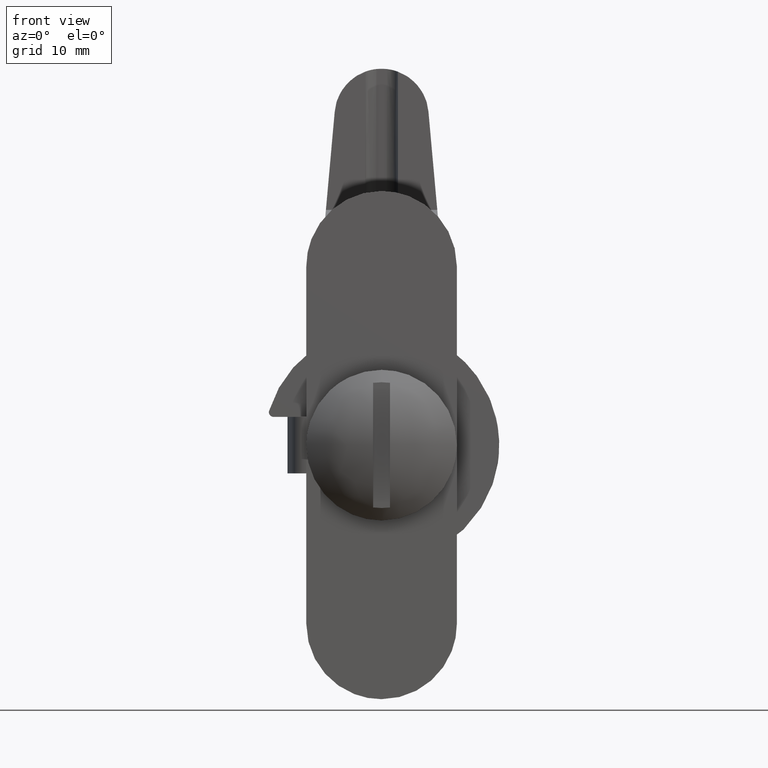
[diagram: clean part render]
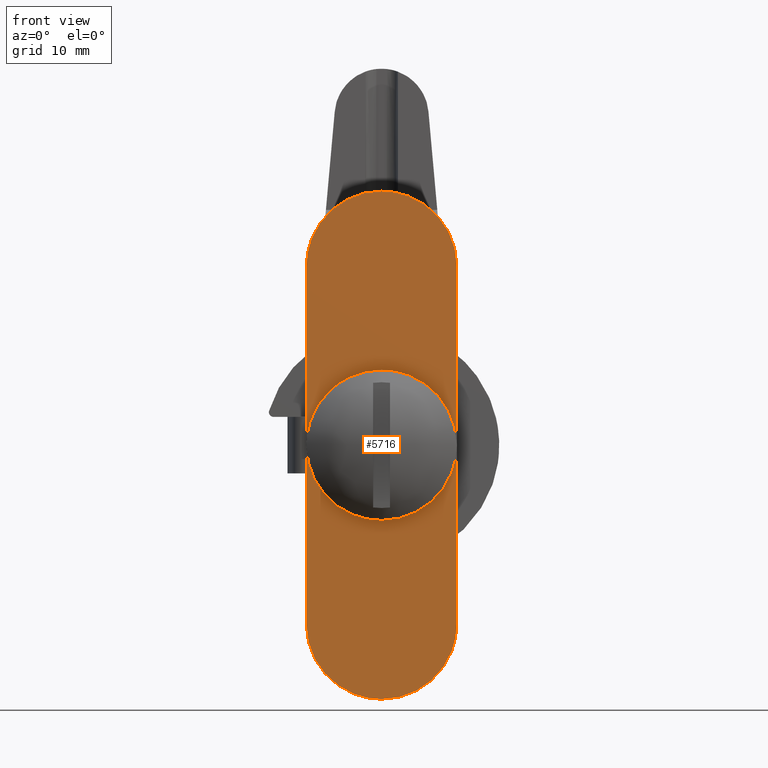
[diagram: same view with one face highlighted and labeled with its STEP entity id]
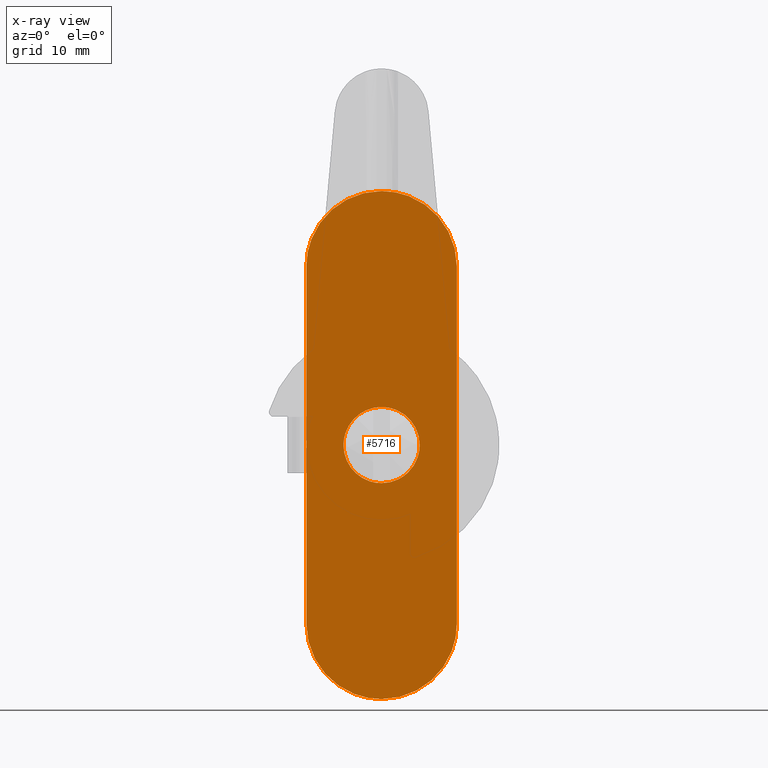
[diagram: x-ray of the same camera — body ghosted, the highlighted face saturated]
A machine part, front view. The second image highlights one B-rep face of the part: STEP entity #5716.
The next image is the same camera in x-ray: the body ghosted, the highlighted face saturated — about 0% of this face is hidden behind the body in this view.
In plain terms, the highlighted face is a freeform B-spline surface patch.
Its self-contained STEP definition (entity closure, byte-faithful):
#5248=CARTESIAN_POINT('',(3.092400484543958,-1.599991000000631,2.615255344986193));
#5249=VERTEX_POINT('',#5248);
#5250=CARTESIAN_POINT('',(0.0,-1.599990999999965,4.050000000000000));
#5251=VERTEX_POINT('',#5250);
#5252=CARTESIAN_POINT('',(3.092400484543958,-1.599991000000631,2.615255344986193));
#5253=CARTESIAN_POINT('',(2.879450463511448,-1.599991000000588,2.867201637805676));
#5254=CARTESIAN_POINT('',(2.513455534628931,-1.599991000000501,3.205643752623646));
#5255=CARTESIAN_POINT('',(1.877003888556455,-1.599991000000373,3.607656000382701));
#5256=CARTESIAN_POINT('',(1.099462235144810,-1.599991000000200,3.943158492366766));
#5257=CARTESIAN_POINT('',(0.421533467174322,-1.599991000000055,4.050213329466186));
#5258=CARTESIAN_POINT('',(0.0,-1.599990999999965,4.050000000000000));
#5259=B_SPLINE_CURVE_WITH_KNOTS('',3,(#5252,#5253,#5254,#5255,#5256,#5257,#5258),.UNSPECIFIED.,.F.,.U.,(4,1,1,1,4),(0.000000023080737,0.989627527674797,1.484443801501332,2.254149022901001,3.518673672374912),.UNSPECIFIED.);
#5260=EDGE_CURVE('',#5249,#5251,#5259,.T.);
#5262=CARTESIAN_POINT('',(-4.049999999999949,-1.599990999999965,-0.000000639136269));
#5263=VERTEX_POINT('',#5262);
#5264=CARTESIAN_POINT('',(0.0,-1.599990999999965,4.050000000000000));
#5265=CARTESIAN_POINT('',(-0.314774181988511,-1.599990999999964,4.050062645675340));
#5266=CARTESIAN_POINT('',(-0.861454541847088,-1.599990999999967,3.985933744480716));
#5267=CARTESIAN_POINT('',(-1.603535380286522,-1.599990999999964,3.740766554754877));
#5268=CARTESIAN_POINT('',(-2.278139149217246,-1.599990999999965,3.380227175433728));
#5269=CARTESIAN_POINT('',(-2.870828241984392,-1.599990999999975,2.893817393189305));
#5270=CARTESIAN_POINT('',(-3.345502506040711,-1.599990999999957,2.315373141670689));
#5271=CARTESIAN_POINT('',(-3.660138199431569,-1.599990999999972,1.767776444814357));
#5272=CARTESIAN_POINT('',(-3.957708864991862,-1.599990999999964,1.010485527771871));
#5273=CARTESIAN_POINT('',(-4.050196407394374,-1.599990999999965,0.414203455855034));
#5274=CARTESIAN_POINT('',(-4.049999999999949,-1.599990999999965,-0.000000639136269));
#5275=B_SPLINE_CURVE_WITH_KNOTS('',3,(#5264,#5265,#5266,#5267,#5268,#5269,#5270,#5271,#5272,#5273,#5274),.UNSPECIFIED.,.F.,.U.,(4,1,1,1,1,1,1,1,4),(0.000000070980157,0.944313055946179,1.640143833672003,2.335974185389155,3.230562816715836,3.926395951291294,4.572516989498781,5.119233933469779,6.361765400877429),.UNSPECIFIED.);
#5276=EDGE_CURVE('',#5251,#5263,#5275,.T.);
#5278=CARTESIAN_POINT('',(0.0,-1.599990999999965,-4.050000000000000));
#5279=VERTEX_POINT('',#5278);
#5280=CARTESIAN_POINT('',(-4.049999999999949,-1.599990999999965,-0.000000639136269));
#5281=CARTESIAN_POINT('',(-4.050021377162549,-1.599990999999965,-0.265066795188676));
#5282=CARTESIAN_POINT('',(-3.989669675933455,-1.599990999999967,-0.878058234504779));
#5283=CARTESIAN_POINT('',(-3.706834513284169,-1.599990999999963,-1.717005494734092));
#5284=CARTESIAN_POINT('',(-3.191544699875011,-1.599990999999965,-2.553211640489213));
#5285=CARTESIAN_POINT('',(-2.588707740704343,-1.599990999999979,-3.156125099174831));
#5286=CARTESIAN_POINT('',(-1.889291668312245,-1.599990999999938,-3.604906772169243));
#5287=CARTESIAN_POINT('',(-1.076747036564646,-1.599990999999990,-3.947423221746329));
#5288=CARTESIAN_POINT('',(-0.414202610406967,-1.599990999999956,-4.050203531190827));
#5289=CARTESIAN_POINT('',(0.0,-1.599990999999965,-4.050000000000000));
#5290=B_SPLINE_CURVE_WITH_KNOTS('',3,(#5280,#5281,#5282,#5283,#5284,#5285,#5286,#5287,#5288,#5289),.UNSPECIFIED.,.F.,.U.,(4,1,1,1,1,1,1,4),(0.000000071200660,0.795207521116857,1.838952461712017,2.634173546756636,3.727595044182834,4.373706819607634,5.119233353555915,6.361764680417384),.UNSPECIFIED.);
#5291=EDGE_CURVE('',#5263,#5279,#5290,.T.);
#5293=CARTESIAN_POINT('',(2.787835964500129,-1.599990999996057,-2.937766046260736));
#5294=VERTEX_POINT('',#5293);
#5295=CARTESIAN_POINT('',(0.0,-1.599990999999965,-4.050000000000000));
#5296=CARTESIAN_POINT('',(0.272248477397850,-1.599990999999583,-4.050019538906583));
#5297=CARTESIAN_POINT('',(0.880813398071738,-1.599990999998729,-3.988456380367733));
#5298=CARTESIAN_POINT('',(1.859280489832357,-1.599990999997363,-3.657527662485564));
#5299=CARTESIAN_POINT('',(2.485911185358544,-1.599990999996477,-3.224517046621647));
#5300=CARTESIAN_POINT('',(2.787835964500129,-1.599990999996057,-2.937766046260736));
#5301=B_SPLINE_CURVE_WITH_KNOTS('',3,(#5295,#5296,#5297,#5298,#5299,#5300),.UNSPECIFIED.,.F.,.U.,(4,1,1,4),(0.000000018504035,0.816758172003964,1.825689168511334,3.074851836644841),.UNSPECIFIED.);
#5302=EDGE_CURVE('',#5279,#5294,#5301,.T.);
#5389=CARTESIAN_POINT('',(4.049999999999949,-1.599990999999965,0.000000639136246));
#5390=VERTEX_POINT('',#5389);
#5391=CARTESIAN_POINT('',(4.049999999999949,-1.599990999999965,0.000000639136246));
#5392=CARTESIAN_POINT('',(4.050022687463712,-1.599991000000034,0.266538806891957));
#5393=CARTESIAN_POINT('',(3.991371218753707,-1.599991000000183,0.858850843581584));
#5394=CARTESIAN_POINT('',(3.692820736322907,-1.599991000000415,1.765566485240710));
#5395=CARTESIAN_POINT('',(3.321978731709841,-1.599991000000561,2.343961328591003));
#5396=CARTESIAN_POINT('',(3.092400484543958,-1.599991000000631,2.615255344986193));
#5397=B_SPLINE_CURVE_WITH_KNOTS('',3,(#5391,#5392,#5393,#5394,#5395,#5396),.UNSPECIFIED.,.F.,.U.,(4,1,1,4),(0.000000014311791,0.799620893027407,1.776927983089658,2.843092203068202),.UNSPECIFIED.);
#5398=EDGE_CURVE('',#5390,#5249,#5397,.T.);
#5423=CARTESIAN_POINT('',(2.787835964500129,-1.599990999996057,-2.937766046260736));
#5424=CARTESIAN_POINT('',(3.086011011300515,-1.599990999996436,-2.655062566053397));
#5425=CARTESIAN_POINT('',(3.457114282690152,-1.599990999997067,-2.175866781228835));
#5426=CARTESIAN_POINT('',(3.798753297274103,-1.599990999998046,-1.445207964500891));
#5427=CARTESIAN_POINT('',(3.996241339278606,-1.599990999998915,-0.787467255144637));
#5428=CARTESIAN_POINT('',(4.050054657713321,-1.599990999999580,-0.291031729659107));
#5429=CARTESIAN_POINT('',(4.049999999999949,-1.599990999999965,0.000000639136246));
#5430=B_SPLINE_CURVE_WITH_KNOTS('',3,(#5423,#5424,#5425,#5426,#5427,#5428,#5429),.UNSPECIFIED.,.F.,.U.,(4,1,1,1,4),(0.000000019326684,1.232593155378983,1.797521979853967,2.413826816486864,3.286913850818737),.UNSPECIFIED.);
#5431=EDGE_CURVE('',#5294,#5390,#5430,.T.);
#5450=CARTESIAN_POINT('',(-8.0,-1.600004125000085,3.0));
#5451=VERTEX_POINT('',#5450);
#5514=CARTESIAN_POINT('',(-8.0,-1.600004125000085,-3.0));
#5515=VERTEX_POINT('',#5514);
#5557=CARTESIAN_POINT('',(-8.0,-1.600004125000085,3.0));
#5558=CARTESIAN_POINT('',(-8.0,-1.600004125000085,-3.0));
#5559=QUASI_UNIFORM_CURVE('',1,(#5557,#5558),.UNSPECIFIED.,.F.,.U.);
#5560=EDGE_CURVE('',#5451,#5515,#5559,.T.);
#5613=CARTESIAN_POINT('',(-8.799199968988896,-1.599991000000000,29.697299895337459));
#5614=CARTESIAN_POINT('',(8.799200398142338,-1.599991000000000,29.697299895337459));
#5615=CARTESIAN_POINT('',(-8.799199968988896,-1.599991000000000,-29.697301343730320));
#5616=CARTESIAN_POINT('',(8.799200398142338,-1.599991000000000,-29.697301343730320));
#5617=B_SPLINE_SURFACE_WITH_KNOTS('',1,1,((#5613,#5615),(#5614,#5616)),.UNSPECIFIED.,.F.,.F.,.U.,(2,2),(2,2),(0.0,17.598400367131230),(0.0,59.394601239067782),.UNSPECIFIED.);
#5618=CARTESIAN_POINT('',(8.0,-1.599990999999965,19.0));
#5619=VERTEX_POINT('',#5618);
#5620=CARTESIAN_POINT('',(8.0,-1.599990999999965,-19.0));
#5621=VERTEX_POINT('',#5620);
#5622=CARTESIAN_POINT('',(8.0,-1.599990999999965,19.0));
#5623=CARTESIAN_POINT('',(8.0,-1.599990999999965,-19.0));
#5624=QUASI_UNIFORM_CURVE('',1,(#5622,#5623),.UNSPECIFIED.,.F.,.U.);
#5625=EDGE_CURVE('',#5619,#5621,#5624,.T.);
#5626=ORIENTED_EDGE('',*,*,#5625,.F.);
#5627=CARTESIAN_POINT('',(-0.000000934780659,-1.599990999999965,26.999999999999940));
#5628=VERTEX_POINT('',#5627);
#5629=CARTESIAN_POINT('',(8.0,-1.599990999999965,19.0));
#5630=CARTESIAN_POINT('',(8.000241400937915,-1.599990999999962,19.719977539252369));
#5631=CARTESIAN_POINT('',(7.848755472714855,-1.599990999999970,20.832485756980841));
#5632=CARTESIAN_POINT('',(7.351187204829905,-1.599990999999963,22.222765253738810));
#5633=CARTESIAN_POINT('',(6.724646055924949,-1.599990999999969,23.412691798531380));
#5634=CARTESIAN_POINT('',(5.853613332824177,-1.599990999999958,24.528779885471860));
#5635=CARTESIAN_POINT('',(4.659765852058653,-1.599990999999977,25.558560283111419));
#5636=CARTESIAN_POINT('',(3.409735189636632,-1.599990999999950,26.287116650751710));
#5637=CARTESIAN_POINT('',(1.832493211082525,-1.599990999999982,26.851426075191700));
#5638=CARTESIAN_POINT('',(0.687247576002959,-1.599990999999946,27.000228501115409));
#5639=CARTESIAN_POINT('',(-0.000000934780659,-1.599990999999965,26.999999999999940));
#5640=B_SPLINE_CURVE_WITH_KNOTS('',3,(#5629,#5630,#5631,#5632,#5633,#5634,#5635,#5636,#5637,#5638,#5639),.UNSPECIFIED.,.F.,.U.,(4,1,1,1,1,1,1,1,4),(0.000000014343312,2.159856882655213,3.337964278022064,4.417900910416069,6.185052703046270,7.559495555221599,9.130310900550384,10.504771376282759,12.566449989862109),.UNSPECIFIED.);
#5641=EDGE_CURVE('',#5619,#5628,#5640,.T.);
#5642=ORIENTED_EDGE('',*,*,#5641,.T.);
#5643=CARTESIAN_POINT('',(-8.0,-1.599990999999965,19.0));
#5644=VERTEX_POINT('',#5643);
#5645=CARTESIAN_POINT('',(-0.000000934780659,-1.599990999999965,26.999999999999940));
#5646=CARTESIAN_POINT('',(-0.589061581638623,-1.599990999999966,27.000115235402291));
#5647=CARTESIAN_POINT('',(-1.374407388602969,-1.599990999999965,26.912854786396750));
#5648=CARTESIAN_POINT('',(-2.641053360848091,-1.599990999999964,26.579022243569408));
#5649=CARTESIAN_POINT('',(-3.643581592725687,-1.599990999999967,26.163769536608481));
#5650=CARTESIAN_POINT('',(-4.672821503190351,-1.599990999999961,25.520739971512050));
#5651=CARTESIAN_POINT('',(-5.509192159444966,-1.599990999999963,24.834371039429680));
#5652=CARTESIAN_POINT('',(-6.179168143640326,-1.599990999999964,24.113137798519588));
#5653=CARTESIAN_POINT('',(-6.870168165128685,-1.599990999999972,23.157208867047231));
#5654=CARTESIAN_POINT('',(-7.400201887620280,-1.599990999999964,22.135633798436061));
#5655=CARTESIAN_POINT('',(-7.874743186738570,-1.599990999999966,20.668884423873951));
#5656=CARTESIAN_POINT('',(-8.000189089035738,-1.599990999999966,19.654521212331879));
#5657=CARTESIAN_POINT('',(-8.0,-1.599990999999965,19.0));
#5658=B_SPLINE_CURVE_WITH_KNOTS('',3,(#5645,#5646,#5647,#5648,#5649,#5650,#5651,#5652,#5653,#5654,#5655,#5656,#5657),.UNSPECIFIED.,.F.,.U.,(4,1,1,1,1,1,1,1,1,1,4),(0.000000014663456,1.767155173328098,2.356207493751828,3.927020058565681,5.006956287543400,5.988705942974522,7.166792417576429,7.952198692843357,9.523012135107177,10.602946555239740,12.566448936139830),.UNSPECIFIED.);
#5659=EDGE_CURVE('',#5628,#5644,#5658,.T.);
#5660=ORIENTED_EDGE('',*,*,#5659,.T.);
#5661=CARTESIAN_POINT('',(-8.0,-1.600004125000085,3.0));
#5662=CARTESIAN_POINT('',(-8.0,-1.599990999999965,19.0));
#5663=QUASI_UNIFORM_CURVE('',1,(#5661,#5662),.UNSPECIFIED.,.F.,.U.);
#5664=EDGE_CURVE('',#5451,#5644,#5663,.T.);
#5665=ORIENTED_EDGE('',*,*,#5664,.F.);
#5666=ORIENTED_EDGE('',*,*,#5560,.T.);
#5667=CARTESIAN_POINT('',(-8.0,-1.599990999999965,-19.0));
#5668=VERTEX_POINT('',#5667);
#5669=CARTESIAN_POINT('',(-8.0,-1.599990999999965,-19.0));
#5670=CARTESIAN_POINT('',(-8.0,-1.600004125000085,-3.0));
#5671=QUASI_UNIFORM_CURVE('',1,(#5669,#5670),.UNSPECIFIED.,.F.,.U.);
#5672=EDGE_CURVE('',#5668,#5515,#5671,.T.);
#5673=ORIENTED_EDGE('',*,*,#5672,.F.);
#5674=CARTESIAN_POINT('',(0.000000934780659,-1.599990999999965,-26.999999999999940));
#5675=VERTEX_POINT('',#5674);
#5676=CARTESIAN_POINT('',(-8.0,-1.599990999999965,-19.0));
#5677=CARTESIAN_POINT('',(-8.000241400937915,-1.599990999999962,-19.719977539252369));
#5678=CARTESIAN_POINT('',(-7.848755472714855,-1.599990999999970,-20.832485756980841));
#5679=CARTESIAN_POINT('',(-7.351187204829905,-1.599990999999963,-22.222765253738810));
#5680=CARTESIAN_POINT('',(-6.724646055924949,-1.599990999999969,-23.412691798531380));
#5681=CARTESIAN_POINT('',(-5.853613332824177,-1.599990999999958,-24.528779885471860));
#5682=CARTESIAN_POINT('',(-4.659765852058653,-1.599990999999977,-25.558560283111419));
#5683=CARTESIAN_POINT('',(-3.409735189636632,-1.599990999999950,-26.287116650751710));
#5684=CARTESIAN_POINT('',(-1.832493211082525,-1.599990999999982,-26.851426075191700));
#5685=CARTESIAN_POINT('',(-0.687247576002959,-1.599990999999946,-27.000228501115409));
#5686=CARTESIAN_POINT('',(0.000000934780659,-1.599990999999965,-26.999999999999940));
#5687=B_SPLINE_CURVE_WITH_KNOTS('',3,(#5676,#5677,#5678,#5679,#5680,#5681,#5682,#5683,#5684,#5685,#5686),.UNSPECIFIED.,.F.,.U.,(4,1,1,1,1,1,1,1,4),(0.000000014343312,2.159856882655213,3.337964278022064,4.417900910416069,6.185052703046270,7.559495555221599,9.130310900550384,10.504771376282759,12.566449989862109),.UNSPECIFIED.);
#5688=EDGE_CURVE('',#5668,#5675,#5687,.T.);
#5689=ORIENTED_EDGE('',*,*,#5688,.T.);
#5690=CARTESIAN_POINT('',(0.000000934780659,-1.599990999999965,-26.999999999999940));
#5691=CARTESIAN_POINT('',(0.589061581638623,-1.599990999999966,-27.000115235402291));
#5692=CARTESIAN_POINT('',(1.374407388602969,-1.599990999999965,-26.912854786396750));
#5693=CARTESIAN_POINT('',(2.641053360848091,-1.599990999999964,-26.579022243569408));
#5694=CARTESIAN_POINT('',(3.643581592725687,-1.599990999999967,-26.163769536608481));
#5695=CARTESIAN_POINT('',(4.672821503190351,-1.599990999999961,-25.520739971512050));
#5696=CARTESIAN_POINT('',(5.509192159444966,-1.599990999999963,-24.834371039429680));
#5697=CARTESIAN_POINT('',(6.179168143640326,-1.599990999999964,-24.113137798519588));
#5698=CARTESIAN_POINT('',(6.870168165128685,-1.599990999999972,-23.157208867047231));
#5699=CARTESIAN_POINT('',(7.400201887620280,-1.599990999999964,-22.135633798436061));
#5700=CARTESIAN_POINT('',(7.874743186738570,-1.599990999999966,-20.668884423873951));
#5701=CARTESIAN_POINT('',(8.000189089035738,-1.599990999999966,-19.654521212331879));
#5702=CARTESIAN_POINT('',(8.0,-1.599990999999965,-19.0));
#5703=B_SPLINE_CURVE_WITH_KNOTS('',3,(#5690,#5691,#5692,#5693,#5694,#5695,#5696,#5697,#5698,#5699,#5700,#5701,#5702),.UNSPECIFIED.,.F.,.U.,(4,1,1,1,1,1,1,1,1,1,4),(0.000000014663456,1.767155173328098,2.356207493751828,3.927020058565681,5.006956287543400,5.988705942974522,7.166792417576429,7.952198692843357,9.523012135107177,10.602946555239740,12.566448936139830),.UNSPECIFIED.);
#5704=EDGE_CURVE('',#5675,#5621,#5703,.T.);
#5705=ORIENTED_EDGE('',*,*,#5704,.T.);
#5706=EDGE_LOOP('',(#5626,#5642,#5660,#5665,#5666,#5673,#5689,#5705));
#5707=FACE_OUTER_BOUND('',#5706,.T.);
#5708=ORIENTED_EDGE('',*,*,#5276,.F.);
#5709=ORIENTED_EDGE('',*,*,#5260,.F.);
#5710=ORIENTED_EDGE('',*,*,#5398,.F.);
#5711=ORIENTED_EDGE('',*,*,#5431,.F.);
#5712=ORIENTED_EDGE('',*,*,#5302,.F.);
#5713=ORIENTED_EDGE('',*,*,#5291,.F.);
#5714=EDGE_LOOP('',(#5708,#5709,#5710,#5711,#5712,#5713));
#5715=FACE_BOUND('',#5714,.T.);
#5716=ADVANCED_FACE('',(#5707,#5715),#5617,.F.);